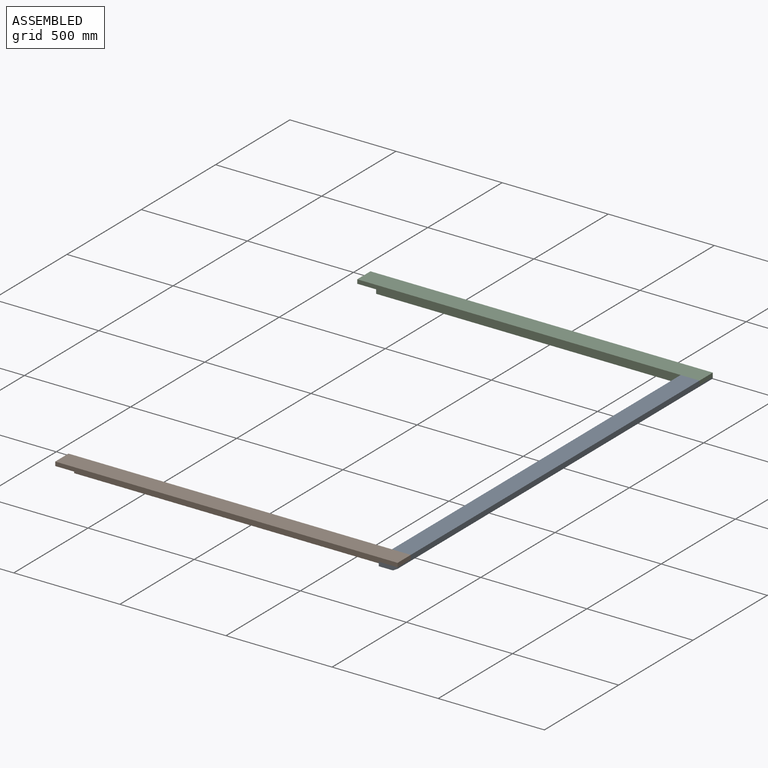
[diagram: assembled view]
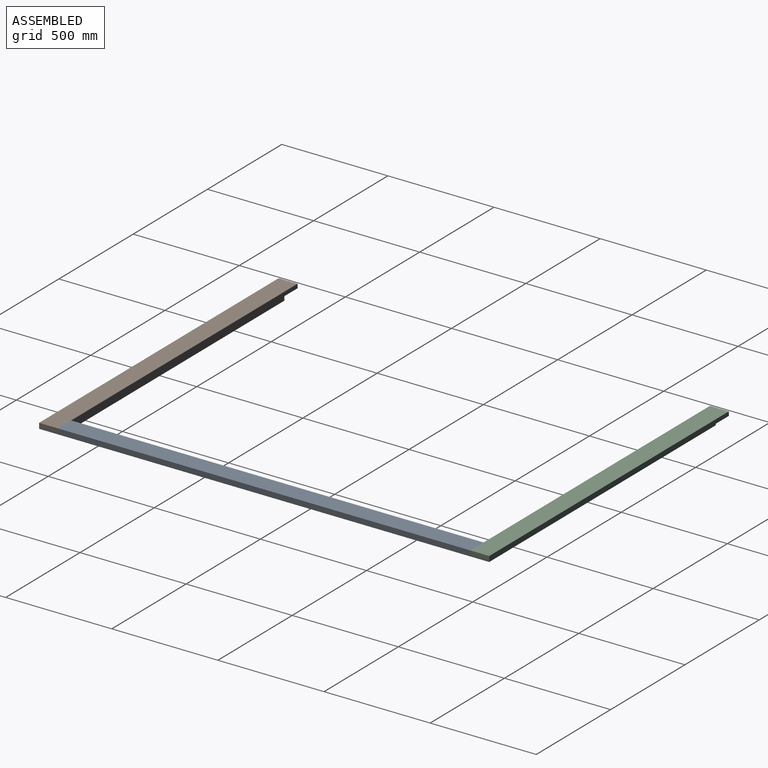
[diagram: assembled view, second angle]
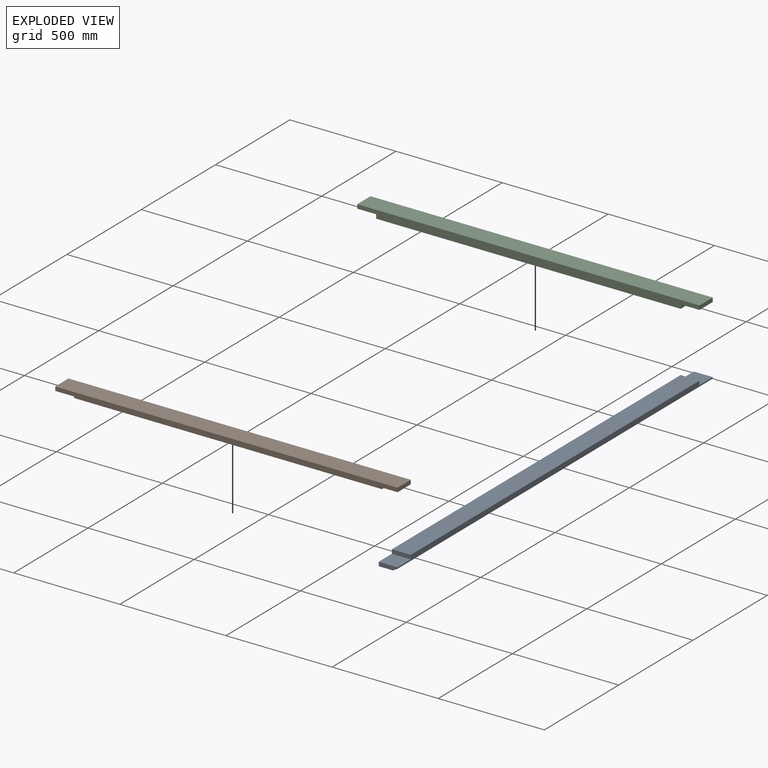
[diagram: exploded view]
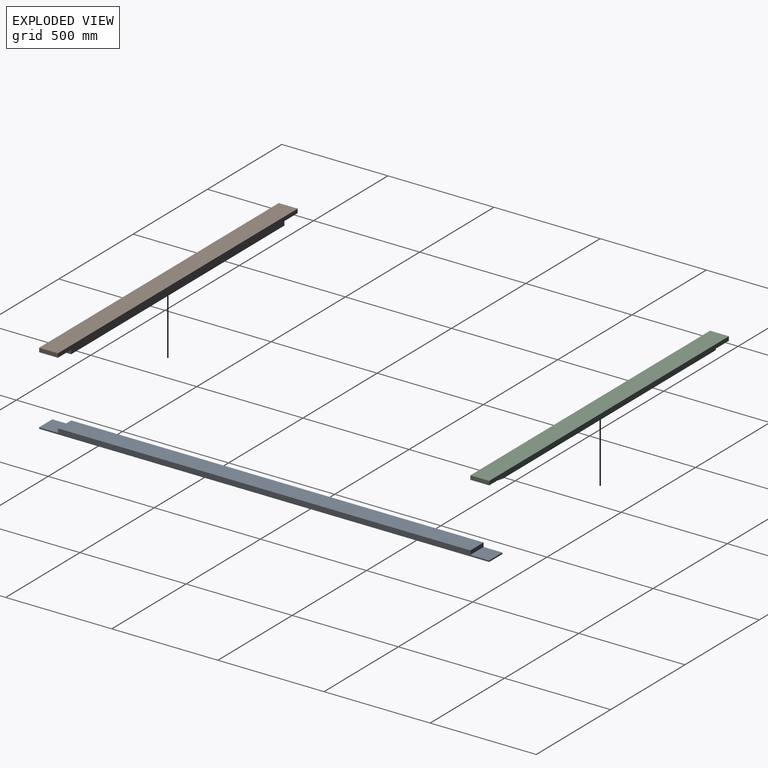
[diagram: exploded view, second angle]
ASSEMBLY  parts=3 mates=2
PART A: 12 faces, bbox 88.9x2120.9x38.1 mm
  f0: plane 1943.1x88.9mm, normal (0,0,1), area 172741.6mm2, adj f1,f4,f5,f8
  f1: plane 2120.9x38.1mm, normal (-1,0,0), area 77279.5mm2, adj f0,f2,f3,f5,f6,f7,f8,f9
  f2: plane 88.9x6.35mm, normal (0,1,0), area 564.5mm2, adj f1,f4,f6,f10
  f3: plane 2098.9x66.9mm, normal (0,0,-1), area 140422.8mm2, adj f1,f7,f10,f11
  f4: plane 2120.9x25.4mm, normal (1,0,0), area 50483.8mm2, adj f0,f2,f5,f6,f7,f8,f9,f11
  f5: plane 88.9x19.05mm, normal (0,1,0), area 1693.5mm2, adj f0,f1,f4,f6
  f6: plane 88.9x88.9mm, normal (0,0,1), area 7903.2mm2, adj f1,f2,f4,f5
  f7: plane 88.9x19.05mm, normal (0,-1,0), area 1553.9mm2, adj f1,f3,f4,f9,f11
  f8: plane 88.9x19.05mm, normal (0,-1,0), area 1693.5mm2, adj f0,f1,f4,f9
  f9: plane 88.9x88.9mm, normal (0,0,1), area 7903.2mm2, adj f1,f4,f7,f8
  f10: plane 88.9x22mm, normal (0,0.5,-0.87), area 1978.7mm2, adj f1,f2,f3,f11
  f11: plane 2120.9x22mm, normal (0.5,0,-0.87), area 53591.5mm2, adj f3,f4,f7,f10
PART B: 11 faces, bbox 1612.9x88.9x38.1 mm
  f0: plane 1612.9x25.4mm, normal (0,1,0), area 39838.6mm2, adj f2,f3,f5,f6,f7,f8,f9,f10
  f1: plane 1435.1x66.9mm, normal (0,0,-1), area 96012.4mm2, adj f4,f5,f8,f10
  f2: plane 88.9x19.05mm, normal (1,0,0), area 1693.5mm2, adj f0,f3,f4,f6
  f3: plane 1612.9x88.9mm, normal (0,0,1), area 143386.8mm2, adj f0,f2,f4,f7
  f4: plane 1612.9x38.1mm, normal (0,-1,0), area 58064.4mm2, adj f1,f2,f3,f5,f6,f7,f8,f9
  f5: plane 88.9x19.05mm, normal (1,0,0), area 1553.9mm2, adj f0,f1,f4,f6,f10
  f6: plane 88.9x88.9mm, normal (0,0,-1), area 7903.2mm2, adj f0,f2,f4,f5
  f7: plane 88.9x19.05mm, normal (-1,0,0), area 1693.5mm2, adj f0,f3,f4,f9
  f8: plane 88.9x19.05mm, normal (-1,0,0), area 1553.9mm2, adj f0,f1,f4,f9,f10
  f9: plane 88.9x88.9mm, normal (0,0,-1), area 7903.2mm2, adj f0,f4,f7,f8
  f10: plane 1435.1x22mm, normal (0,0.5,-0.87), area 36451.5mm2, adj f0,f1,f5,f8
PART C: same geometry as B
PLACE A t=(-549.3,347.72,337.37)mm
PLACE B rot(axis=(0,0,1),180deg) t=(-549.3,347.72,337.37)mm
PLACE C t=(-549.3,347.72,337.37)mm
MATE fastened B.f9 <-> A.f9  axis (0,0,-1) through (212.7,-668.28,337.37)mm
MATE fastened C.f6 <-> A.f6  axis (0,0,-1) through (212.7,1363.72,337.37)mm
